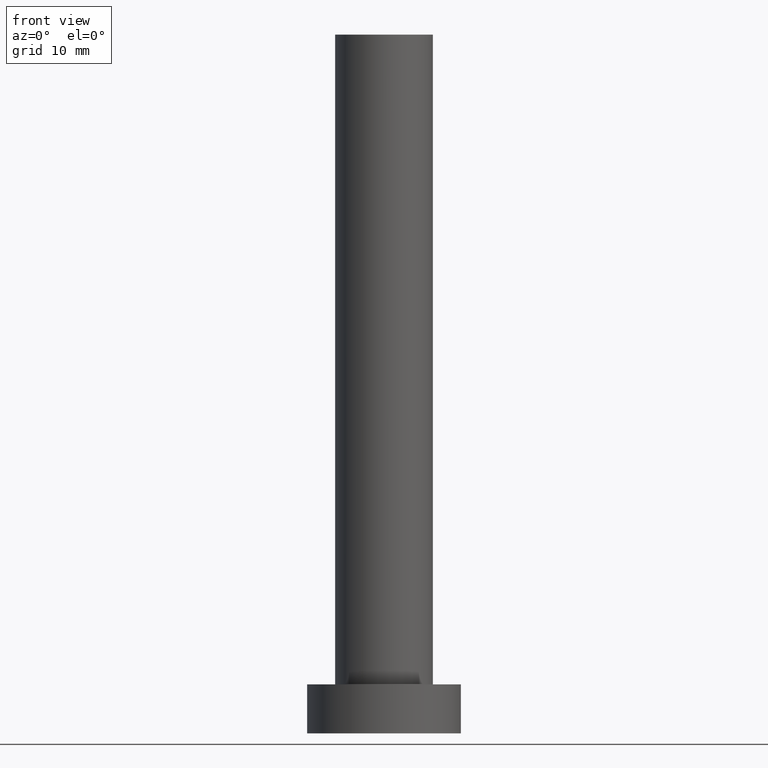
[diagram: clean part render]
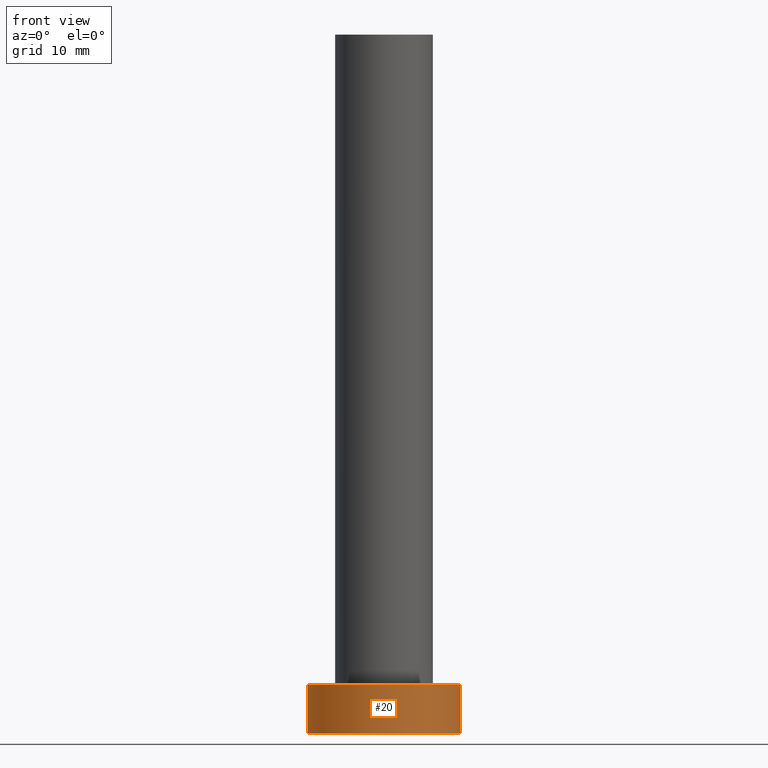
[diagram: same view with one face highlighted and labeled with its STEP entity id]
A machine part, front view. The second image highlights one B-rep face of the part: STEP entity #20.
In plain terms, the highlighted cylindrical surface (partial cylindrical patch) has radius 11 mm, axis along (-0, -0, -1).
Its self-contained STEP definition (entity closure, byte-faithful):
#2 = CIRCLE ( 'NONE', #94, 11.00000000000000000 ) ;
#3 = DIRECTION ( 'NONE',  ( -0.000000000000000000, -0.000000000000000000, -1.000000000000000000 ) ) ;
#16 = CARTESIAN_POINT ( 'NONE',  ( 0.000000000000000000, 0.000000000000000000, 7.000000000000000000 ) ) ;
#18 = ORIENTED_EDGE ( 'NONE', *, *, #224, .T. ) ;
#19 = CARTESIAN_POINT ( 'NONE',  ( -11.00000000000000000, 0.000000000000000000, 7.000000000000000000 ) ) ;
#20 = ADVANCED_FACE ( 'NONE', ( #53 ), #205, .T. ) ;
#22 = DIRECTION ( 'NONE',  ( 1.000000000000000000, 0.000000000000000000, 0.000000000000000000 ) ) ;
#39 = VERTEX_POINT ( 'NONE', #209 ) ;
#43 = CARTESIAN_POINT ( 'NONE',  ( 0.000000000000000000, 0.000000000000000000, 0.000000000000000000 ) ) ;
#46 = LINE ( 'NONE', #193, #254 ) ;
#53 = FACE_OUTER_BOUND ( 'NONE', #54, .T. ) ;
#54 = EDGE_LOOP ( 'NONE', ( #72, #55, #168, #18 ) ) ;
#55 = ORIENTED_EDGE ( 'NONE', *, *, #136, .F. ) ;
#72 = ORIENTED_EDGE ( 'NONE', *, *, #151, .F. ) ;
#90 = DIRECTION ( 'NONE',  ( -0.000000000000000000, -0.000000000000000000, -1.000000000000000000 ) ) ;
#93 = VECTOR ( 'NONE', #3, 1000.000000000000000 ) ;
#94 = AXIS2_PLACEMENT_3D ( 'NONE', #43, #134, #215 ) ;
#99 = CARTESIAN_POINT ( 'NONE',  ( 0.000000000000000000, 0.000000000000000000, 7.000000000000000000 ) ) ;
#100 = CARTESIAN_POINT ( 'NONE',  ( -11.00000000000000000, 0.000000000000000000, 7.000000000000000000 ) ) ;
#123 = EDGE_CURVE ( 'NONE', #187, #39, #194, .T. ) ;
#134 = DIRECTION ( 'NONE',  ( 0.000000000000000000, 0.000000000000000000, 1.000000000000000000 ) ) ;
#136 = EDGE_CURVE ( 'NONE', #187, #188, #178, .T. ) ;
#149 = AXIS2_PLACEMENT_3D ( 'NONE', #16, #90, #252 ) ;
#150 = VERTEX_POINT ( 'NONE', #195 ) ;
#151 = EDGE_CURVE ( 'NONE', #188, #150, #46, .T. ) ;
#168 = ORIENTED_EDGE ( 'NONE', *, *, #123, .T. ) ;
#177 = CARTESIAN_POINT ( 'NONE',  ( 11.00000000000000000, 1.347111479062088405E-15, 7.000000000000000000 ) ) ;
#178 = CIRCLE ( 'NONE', #184, 11.00000000000000000 ) ;
#184 = AXIS2_PLACEMENT_3D ( 'NONE', #99, #240, #22 ) ;
#187 = VERTEX_POINT ( 'NONE', #100 ) ;
#188 = VERTEX_POINT ( 'NONE', #177 ) ;
#193 = CARTESIAN_POINT ( 'NONE',  ( 11.00000000000000000, 1.347111479062088405E-15, 7.000000000000000000 ) ) ;
#194 = LINE ( 'NONE', #19, #93 ) ;
#195 = CARTESIAN_POINT ( 'NONE',  ( 11.00000000000000000, 1.347111479062088405E-15, 0.000000000000000000 ) ) ;
#205 = CYLINDRICAL_SURFACE ( 'NONE', #149, 11.00000000000000000 ) ;
#209 = CARTESIAN_POINT ( 'NONE',  ( -11.00000000000000000, 0.000000000000000000, 0.000000000000000000 ) ) ;
#215 = DIRECTION ( 'NONE',  ( 1.000000000000000000, 0.000000000000000000, 0.000000000000000000 ) ) ;
#224 = EDGE_CURVE ( 'NONE', #39, #150, #2, .T. ) ;
#236 = DIRECTION ( 'NONE',  ( -0.000000000000000000, -0.000000000000000000, -1.000000000000000000 ) ) ;
#240 = DIRECTION ( 'NONE',  ( 0.000000000000000000, 0.000000000000000000, 1.000000000000000000 ) ) ;
#252 = DIRECTION ( 'NONE',  ( -1.000000000000000000, 0.000000000000000000, 0.000000000000000000 ) ) ;
#254 = VECTOR ( 'NONE', #236, 1000.000000000000000 ) ;